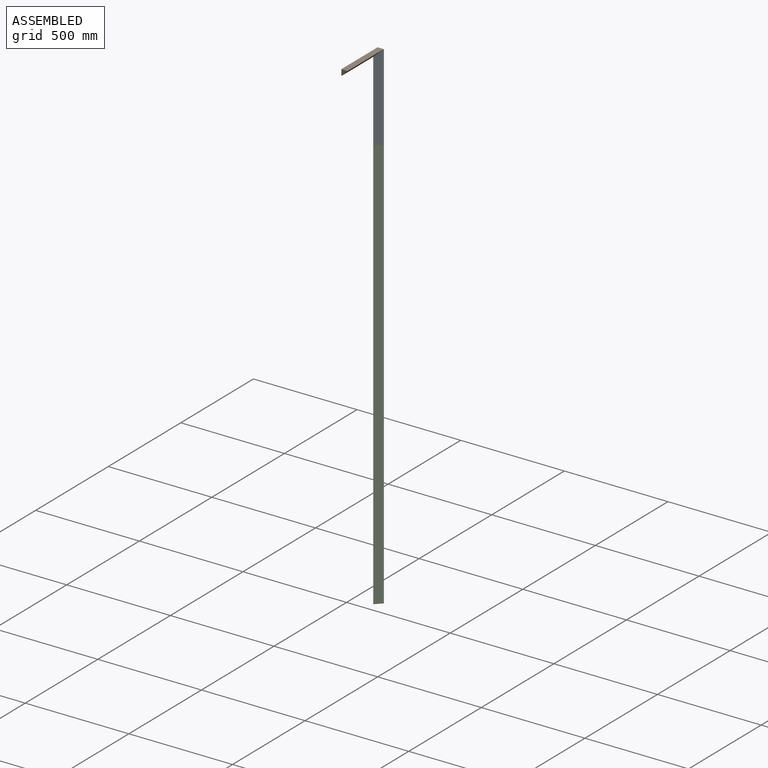
[diagram: assembled view]
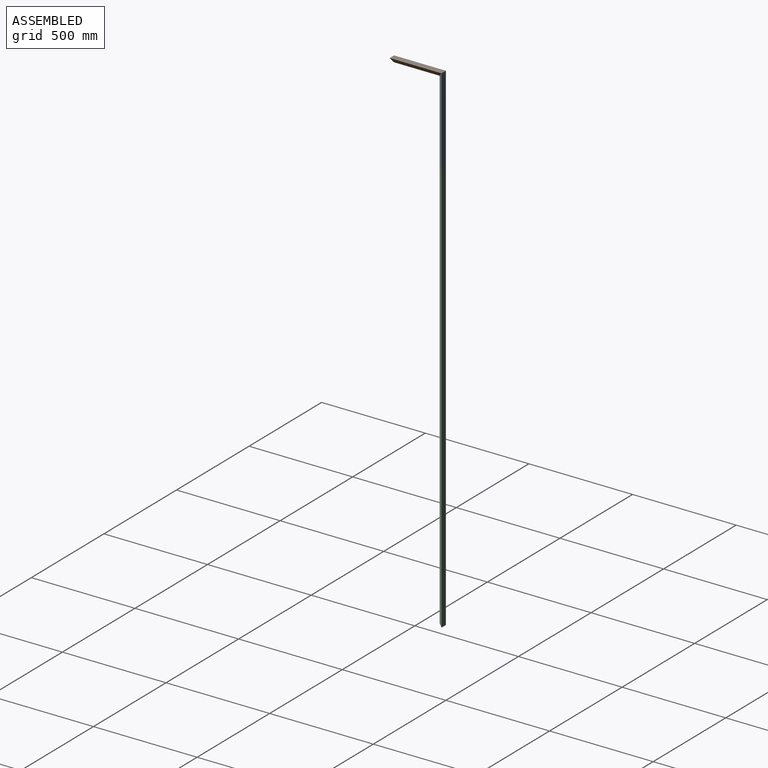
[diagram: assembled view, second angle]
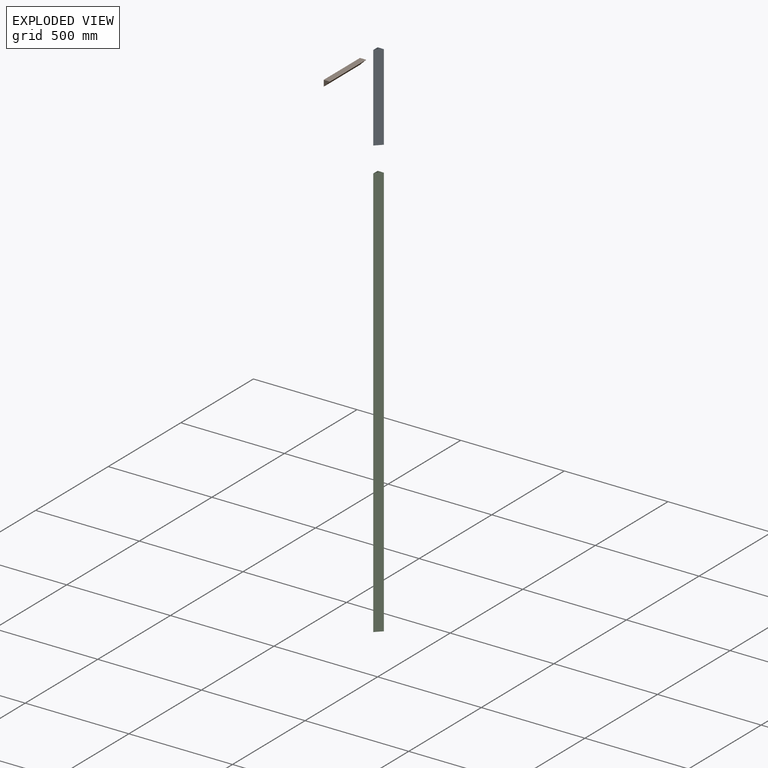
[diagram: exploded view]
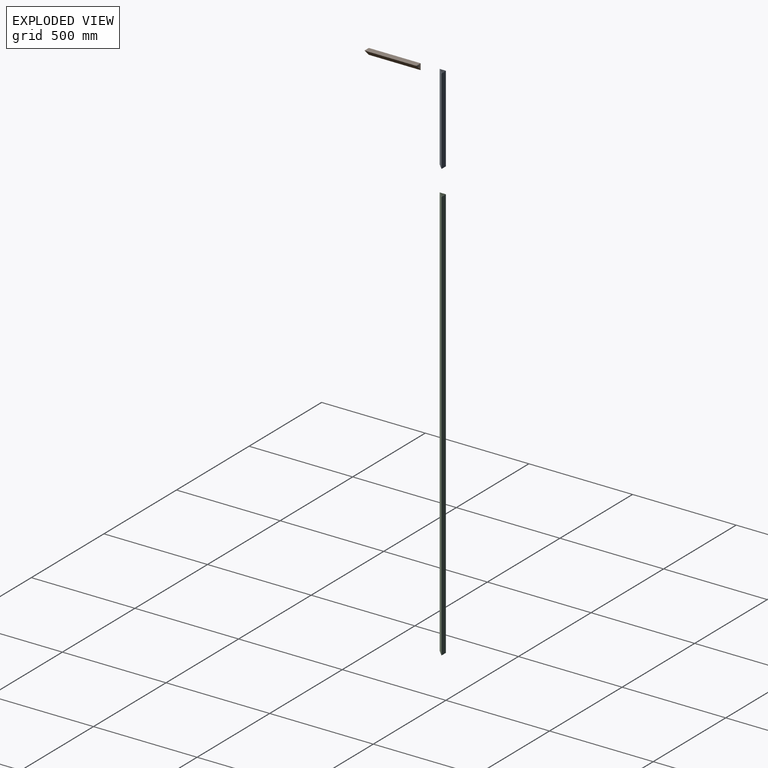
[diagram: exploded view, second angle]
ASSEMBLY  parts=3 mates=2
PART A: 8 faces, bbox 30x30x417 mm
  f0: plane 417x30mm, normal (-1,0,0), area 12510mm2, adj f1,f5,f6,f7
  f1: plane 417x30mm, normal (0,-1,0), area 12510mm2, adj f0,f5,f6,f7
  f2: plane 417x26.59mm, normal (0,1,0), area 11086.3mm2, adj f3,f4,f6,f7
  f3: plane 417x26.59mm, normal (1,0,0), area 11086.3mm2, adj f2,f4,f6,f7
  f4: plane 417x26.59mm, normal (-0.71,-0.71,0), area 15678.4mm2, adj f2,f3,f6,f7
  f5: plane 417x30mm, normal (0.71,0.71,0), area 17691.8mm2, adj f0,f1,f6,f7
  f6: plane 30x30mm, normal (0,0,1), area 96.6mm2, adj f0,f1,f2,f3,f4,f5
  f7: plane 30x30mm, normal (0,0,-1), area 96.6mm2, adj f0,f1,f2,f3,f4,f5
PART B: 8 faces, bbox 30x30x250 mm
  f0: plane 250x30mm, normal (-1,0,0), area 7500mm2, adj f1,f5,f6,f7
  f1: plane 250x30mm, normal (0,-1,0), area 7500mm2, adj f0,f5,f6,f7
  f2: plane 250x26.59mm, normal (0,1,0), area 6646.4mm2, adj f3,f4,f6,f7
  f3: plane 250x26.59mm, normal (1,0,0), area 6646.4mm2, adj f2,f4,f6,f7
  f4: plane 250x26.59mm, normal (-0.71,-0.71,0), area 9399.5mm2, adj f2,f3,f6,f7
  f5: plane 250x30mm, normal (0.71,0.71,0), area 10606.6mm2, adj f0,f1,f6,f7
  f6: plane 30x30mm, normal (0,0,1), area 96.6mm2, adj f0,f1,f2,f3,f4,f5
  f7: plane 30x30mm, normal (0,0,-1), area 96.6mm2, adj f0,f1,f2,f3,f4,f5
PART C: 8 faces, bbox 30x30x2000 mm
  f0: plane 2000x30mm, normal (-1,0,0), area 60000mm2, adj f1,f5,f6,f7
  f1: plane 2000x30mm, normal (0,-1,0), area 60000mm2, adj f0,f5,f6,f7
  f2: plane 2000x26.59mm, normal (0,1,0), area 53171.6mm2, adj f3,f4,f6,f7
  f3: plane 2000x26.59mm, normal (1,0,0), area 53171.6mm2, adj f2,f4,f6,f7
  f4: plane 2000x26.59mm, normal (-0.71,-0.71,0), area 75196mm2, adj f2,f3,f6,f7
  f5: plane 2000x30mm, normal (0.71,0.71,0), area 84852.8mm2, adj f0,f1,f6,f7
  f6: plane 30x30mm, normal (0,0,1), area 96.6mm2, adj f0,f1,f2,f3,f4,f5
  f7: plane 30x30mm, normal (0,0,-1), area 96.6mm2, adj f0,f1,f2,f3,f4,f5
PLACE A rot(axis=(0,0,-1),90deg) t=(0,0,2000)mm
PLACE B rot(axis=(0.58,0.58,-0.58),120deg) t=(0,0,2417)mm
PLACE C rot(axis=(0,0,-1),90deg) t=(0,0,0)mm
MATE fastened A.f0 <-> B.f7  axis (0,-1,0) through (0,0,2417)mm
MATE fastened C.f6 <-> A.f7  axis (0,0,-1) through (0,0,2000)mm
